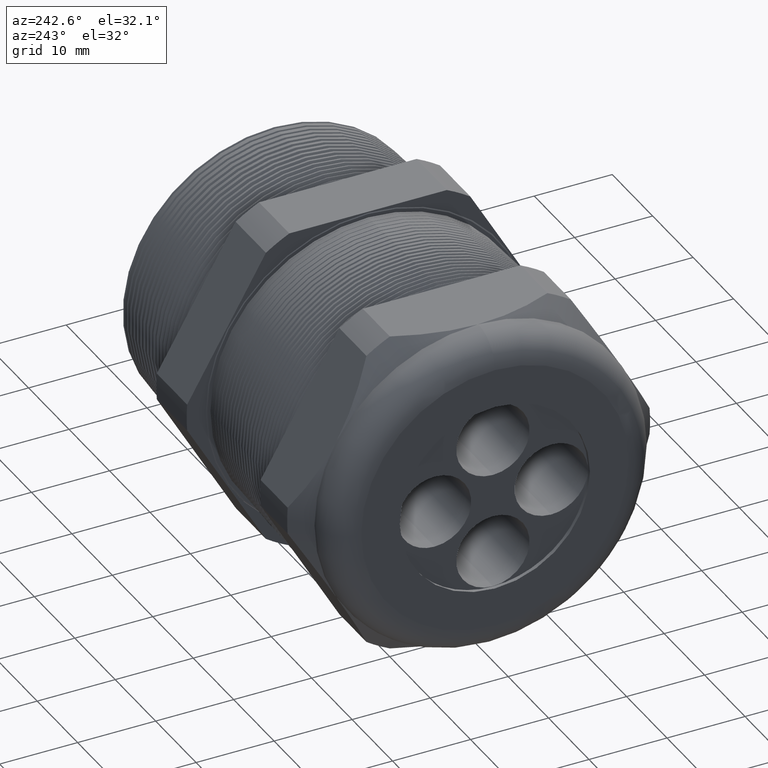
[diagram: clean part render]
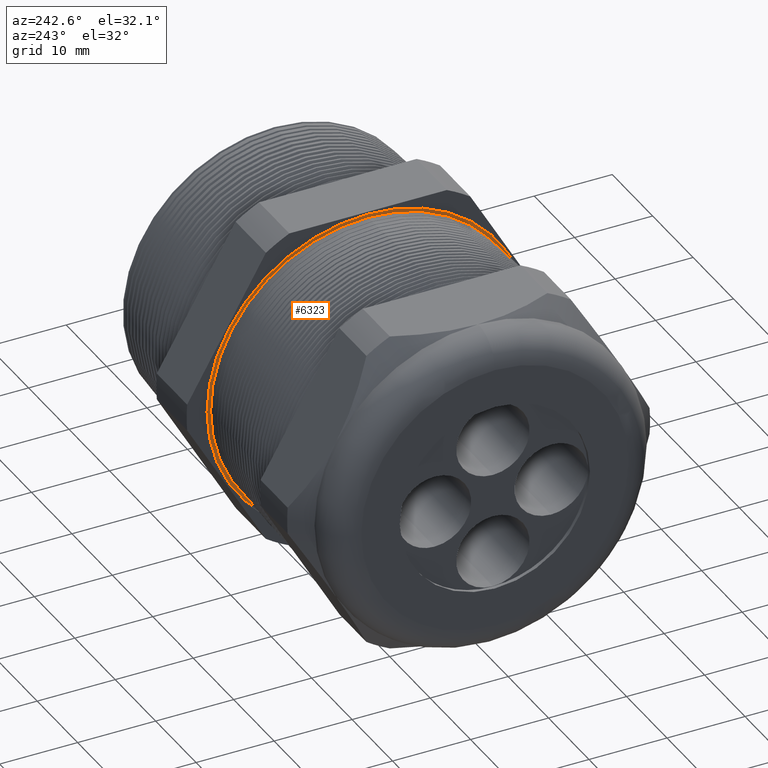
[diagram: same view with one face highlighted and labeled with its STEP entity id]
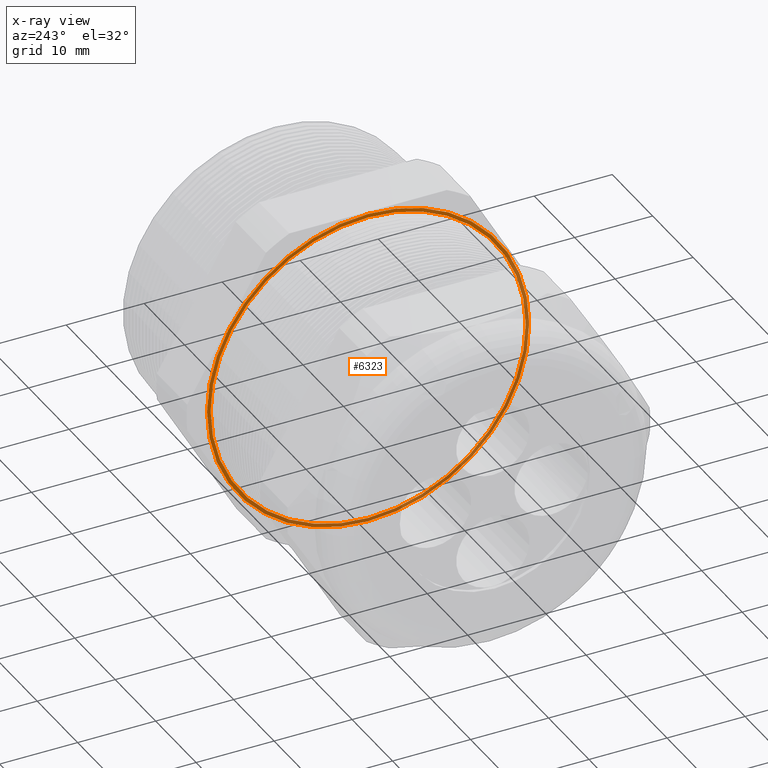
[diagram: x-ray of the same camera — body ghosted, the highlighted face saturated]
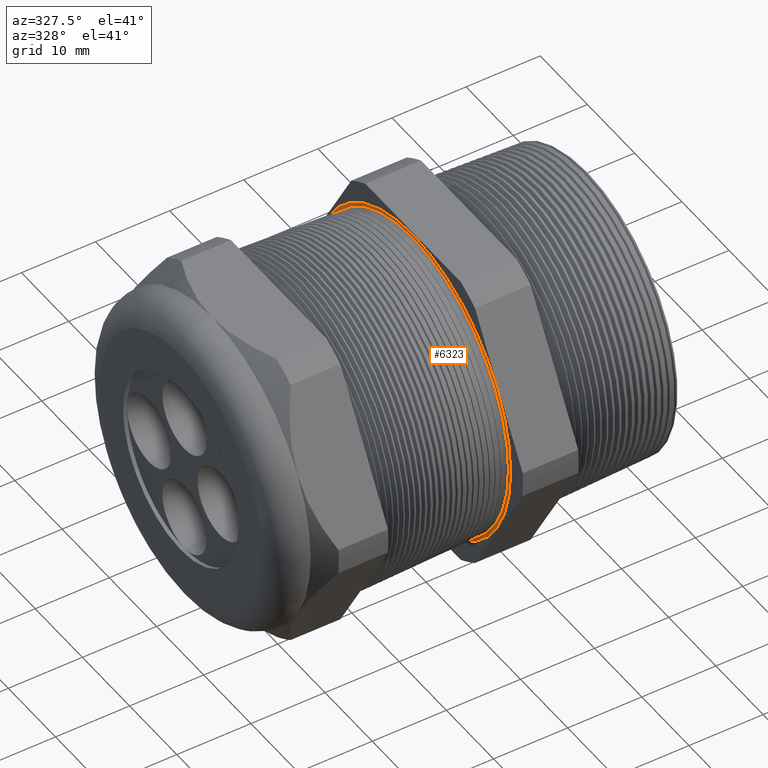
[diagram: same view with one face highlighted and labeled with its STEP entity id]
A machine part, auxiliary view. The second image highlights one B-rep face of the part: STEP entity #6323.
The next image is the same camera in x-ray: the body ghosted, the highlighted face saturated — about 45% of this face is hidden behind the body in this view.
A second angle (auxiliary view) of the same face is appended — the face is thin or edge-on in the first view.
In plain terms, the highlighted planar face has unit normal (-1, 0, 0).
Its self-contained STEP definition (entity closure, byte-faithful):
#350 = CARTESIAN_POINT ( 'NONE',  ( -0.6052755905511809600, 9.992425398151826600E-017, 0.8128943706524487400 ) ) ;
#351 = CARTESIAN_POINT ( 'NONE',  ( -0.6052755905511809600, 0.0000000000000000000, -0.8128943706524487400 ) ) ;
#460 = DIRECTION ( 'NONE',  ( 1.000000000000000000, 0.0000000000000000000, 0.0000000000000000000 ) ) ;
#461 = CARTESIAN_POINT ( 'NONE',  ( -0.6052755905511809600, 0.0000000000000000000, 0.0000000000000000000 ) ) ;
#462 = AXIS2_PLACEMENT_3D ( 'NONE', #461, #460, #8187 ) ;
#468 = CIRCLE ( 'NONE', #462, 0.8128943706524487400 ) ;
#2971 = DIRECTION ( 'NONE',  ( 0.0000000000000000000, 0.0000000000000000000, 1.000000000000000000 ) ) ;
#2972 = DIRECTION ( 'NONE',  ( 1.000000000000000000, 0.0000000000000000000, 0.0000000000000000000 ) ) ;
#2973 = CARTESIAN_POINT ( 'NONE',  ( -0.6052755905511809600, 0.0000000000000000000, 0.0000000000000000000 ) ) ;
#2974 = AXIS2_PLACEMENT_3D ( 'NONE', #2973, #2972, #2971 ) ;
#2979 = CIRCLE ( 'NONE', #2974, 0.8128943706524487400 ) ;
#2982 = DIRECTION ( 'NONE',  ( 0.0000000000000000000, 0.0000000000000000000, -1.000000000000000000 ) ) ;
#2983 = DIRECTION ( 'NONE',  ( 1.000000000000000000, 0.0000000000000000000, 0.0000000000000000000 ) ) ;
#2984 = AXIS2_PLACEMENT_3D ( 'NONE', #2990, #2983, #2982 ) ;
#2985 = CIRCLE ( 'NONE', #2984, 0.7950302749799610400 ) ;
#2990 = CARTESIAN_POINT ( 'NONE',  ( -0.6052755905511809600, 0.0000000000000000000, 0.0000000000000000000 ) ) ;
#3035 = DIRECTION ( 'NONE',  ( 0.0000000000000000000, 0.0000000000000000000, 1.000000000000000000 ) ) ;
#3036 = DIRECTION ( 'NONE',  ( -1.000000000000000000, 0.0000000000000000000, 0.0000000000000000000 ) ) ;
#3037 = CARTESIAN_POINT ( 'NONE',  ( -0.6052755905511809600, 1.649999999999999900, 0.0000000000000000000 ) ) ;
#3038 = AXIS2_PLACEMENT_3D ( 'NONE', #3037, #3036, #3035 ) ;
#3039 = FACE_BOUND ( 'NONE', #6327, .T. ) ;
#3040 = FACE_OUTER_BOUND ( 'NONE', #6324, .T. ) ;
#3044 = PLANE ( 'NONE',  #3038 ) ;
#4050 = DIRECTION ( 'NONE',  ( 0.0000000000000000000, 0.0000000000000000000, -1.000000000000000000 ) ) ;
#4051 = DIRECTION ( 'NONE',  ( 1.000000000000000000, 0.0000000000000000000, 0.0000000000000000000 ) ) ;
#4052 = CARTESIAN_POINT ( 'NONE',  ( -0.6052755905511809600, 0.0000000000000000000, 0.0000000000000000000 ) ) ;
#4053 = AXIS2_PLACEMENT_3D ( 'NONE', #4052, #4051, #4050 ) ;
#4054 = CIRCLE ( 'NONE', #4053, 0.7950302749799610400 ) ;
#4068 = CARTESIAN_POINT ( 'NONE',  ( -0.6052755905511809600, 9.738648746449579400E-017, -0.7950302749799610400 ) ) ;
#4077 = CARTESIAN_POINT ( 'NONE',  ( -0.6052755905511809600, 0.0000000000000000000, 0.7950302749799610400 ) ) ;
#4780 = VERTEX_POINT ( 'NONE', #351 ) ;
#4781 = VERTEX_POINT ( 'NONE', #350 ) ;
#4855 = EDGE_CURVE ( 'NONE', #4780, #4781, #468, .T. ) ;
#6270 = EDGE_CURVE ( 'NONE', #8257, #8262, #2985, .T. ) ;
#6281 = EDGE_CURVE ( 'NONE', #4781, #4780, #2979, .T. ) ;
#6323 = ADVANCED_FACE ( 'NONE', ( #3040, #3039 ), #3044, .T. ) ;
#6324 = EDGE_LOOP ( 'NONE', ( #6325, #6326 ) ) ;
#6325 = ORIENTED_EDGE ( 'NONE', *, *, #4855, .F. ) ;
#6326 = ORIENTED_EDGE ( 'NONE', *, *, #6281, .F. ) ;
#6327 = EDGE_LOOP ( 'NONE', ( #6328, #6329 ) ) ;
#6328 = ORIENTED_EDGE ( 'NONE', *, *, #6270, .T. ) ;
#6329 = ORIENTED_EDGE ( 'NONE', *, *, #8272, .T. ) ;
#8187 = DIRECTION ( 'NONE',  ( 0.0000000000000000000, 0.0000000000000000000, 1.000000000000000000 ) ) ;
#8257 = VERTEX_POINT ( 'NONE', #4077 ) ;
#8262 = VERTEX_POINT ( 'NONE', #4068 ) ;
#8272 = EDGE_CURVE ( 'NONE', #8262, #8257, #4054, .T. ) ;